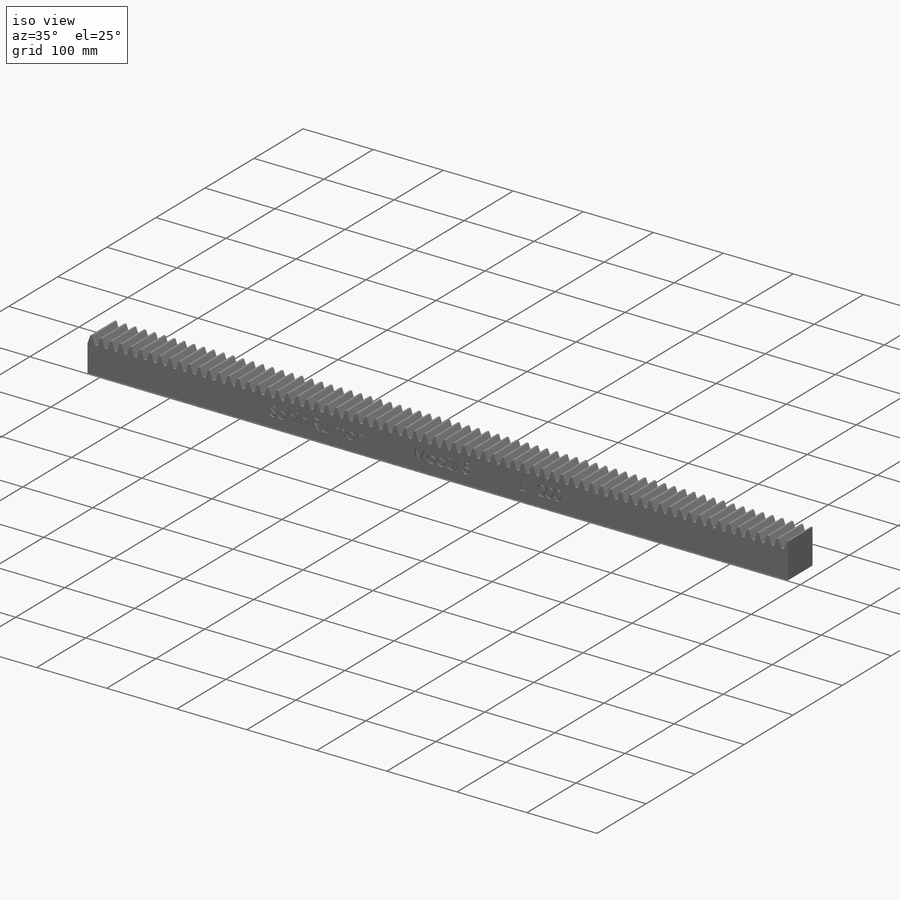
[diagram: iso view]
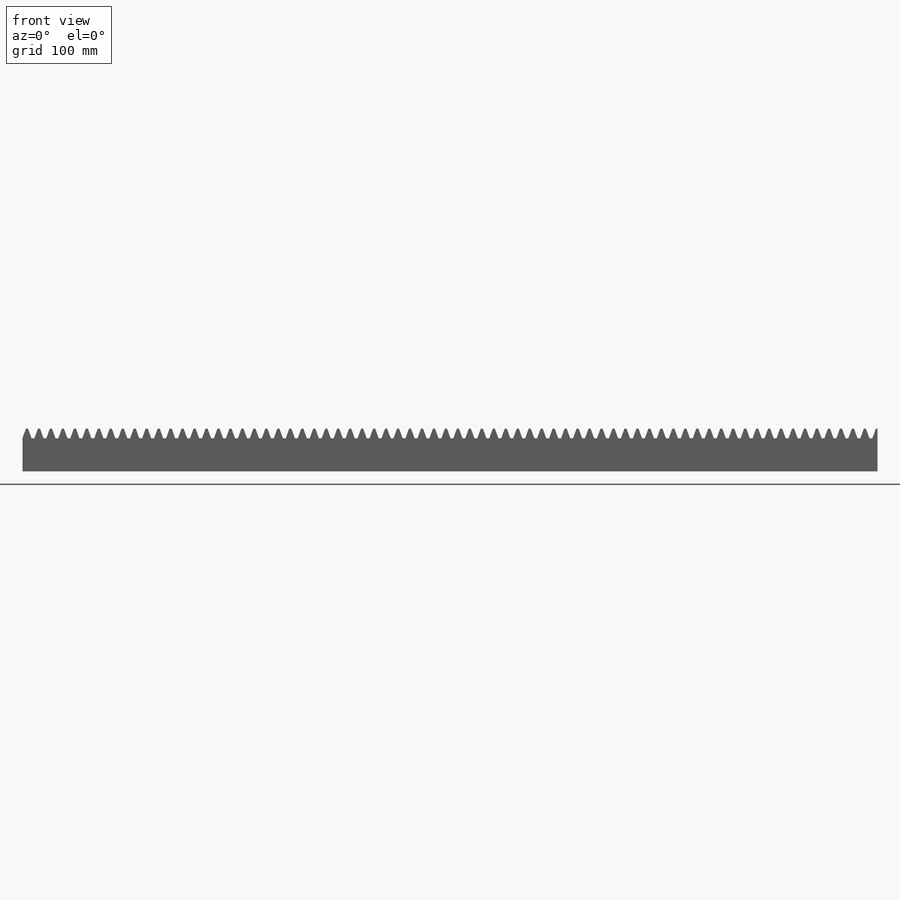
[diagram: front view]
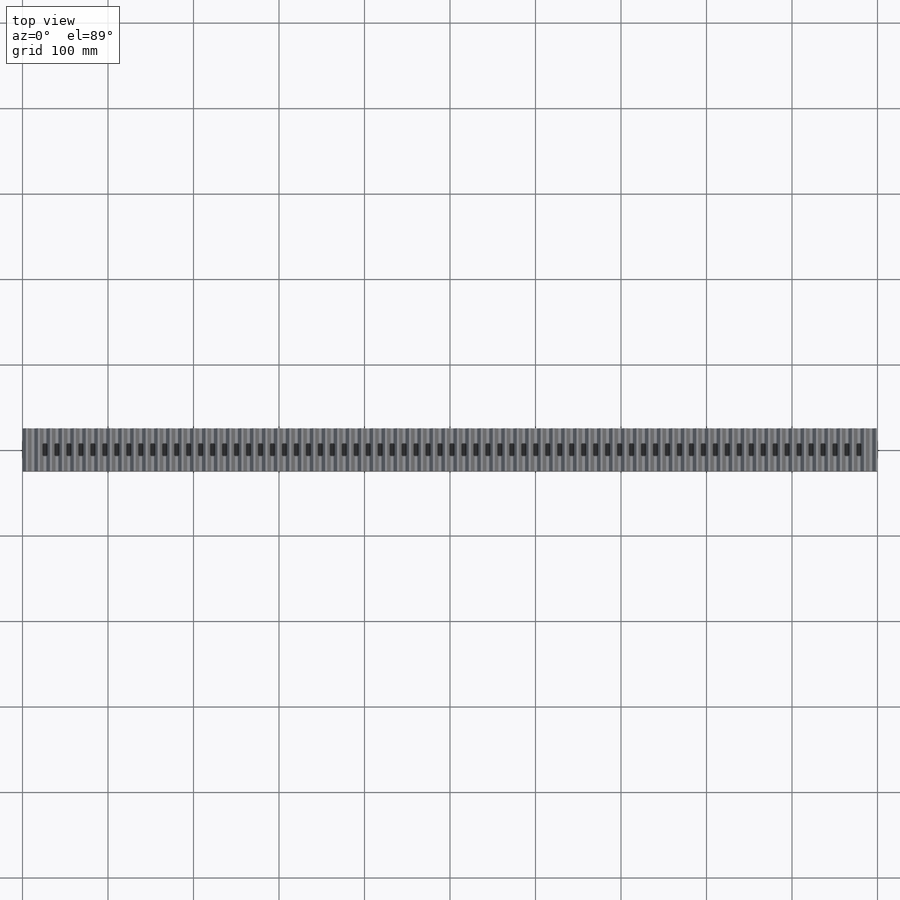
[diagram: top view]
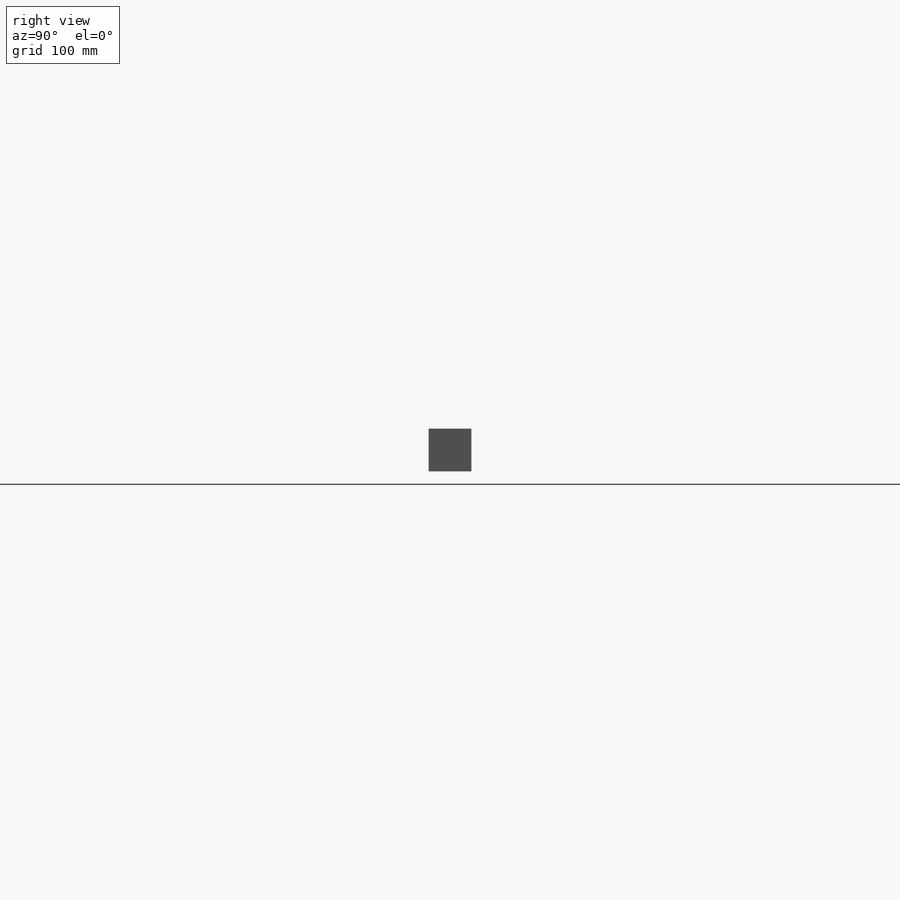
[diagram: right view]
SOLIDWORKS PART (.sldprt)
format: sldprt  version: not decoded by parser v0  size: 693,248 bytes
history: native  units: mm
features: sketch x3, cut_extrude x2, material x1, extrude x1, pattern_linear x1 (+11 scaffold rows collapsed)
feature tree (19):
  scaffold x11  (default folders/planes/origin — collapsed)
  material  "Material <not specified>"
  sketch  "Sketch1"  dims[D1=50.0mm D2=50.0mm]
  extrude  "Boss-Extrude1"  Depth=1000mm
  sketch  "Sketch2"  dims[c1.D1=2.0mm c1.D2=11.25mm c1.D3=3.304mm c1.D4=~20.842439mm c2.D4=20.0deg c2.D5=~20.842439mm c3.D5=20.0deg]
  cut_extrude  "Cut-Extrude1"  [1 undecoded]
  pattern_linear  "LPattern1"  Count1=3 Count2=1 Spacing1=14mm Spacing2=10mm
  sketch  "Sketch3"
  cut_extrude  "Cut-Extrude2"  Depth=2mm
decode coverage: 5 of 7 modeling features carry decoded parameters
note: ~ marks probable driven/reference dimensions
note: 1 parameter value undecoded
note: suppression state not decoded; provenance and decode notes live in map.json
